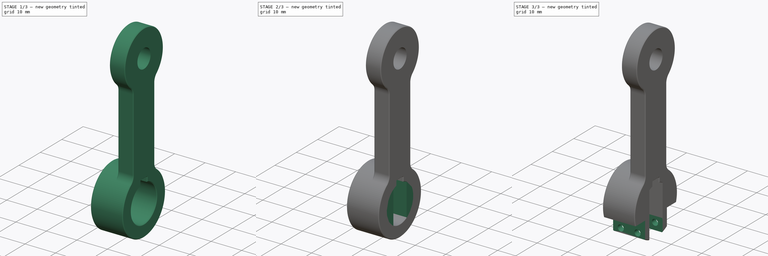
[diagram: build sequence overview — one tinted view per stage of 3, left to right]
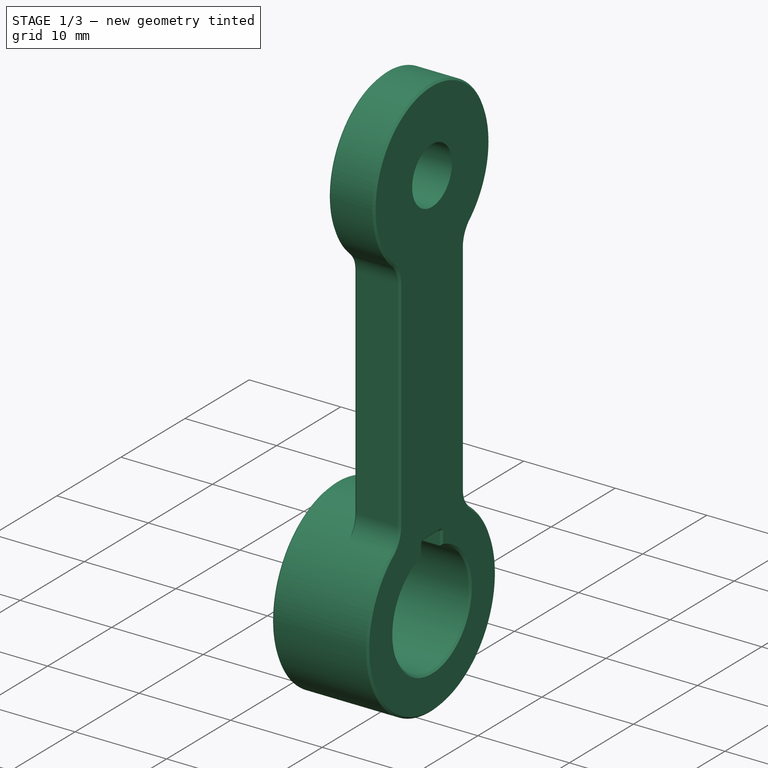
[diagram: stage 1 of 3 — iso view after this stage's code; geometry added in this stage tinted green]
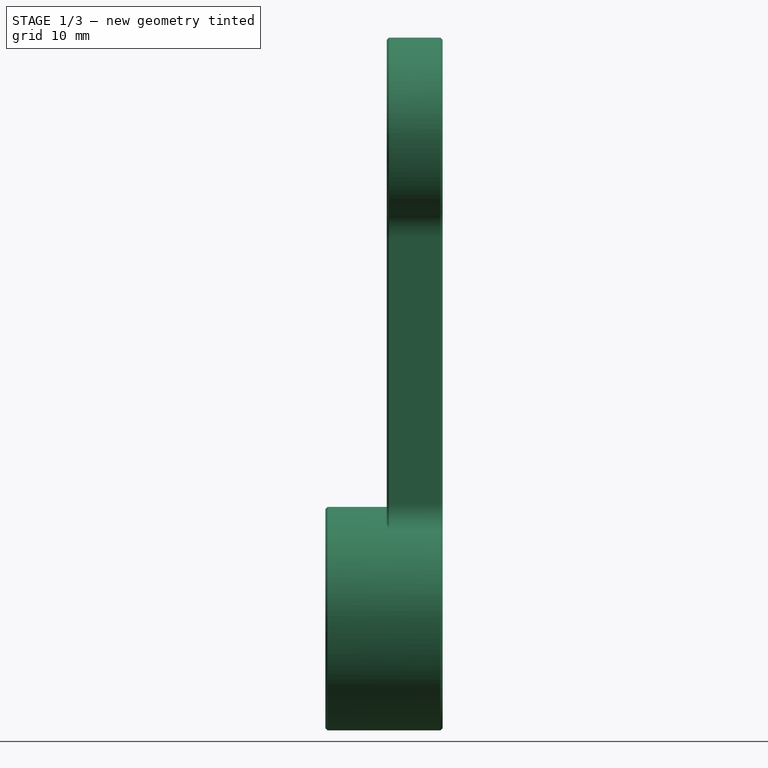
[diagram: stage 1 of 3 — front view after this stage's code; geometry added in this stage tinted green]
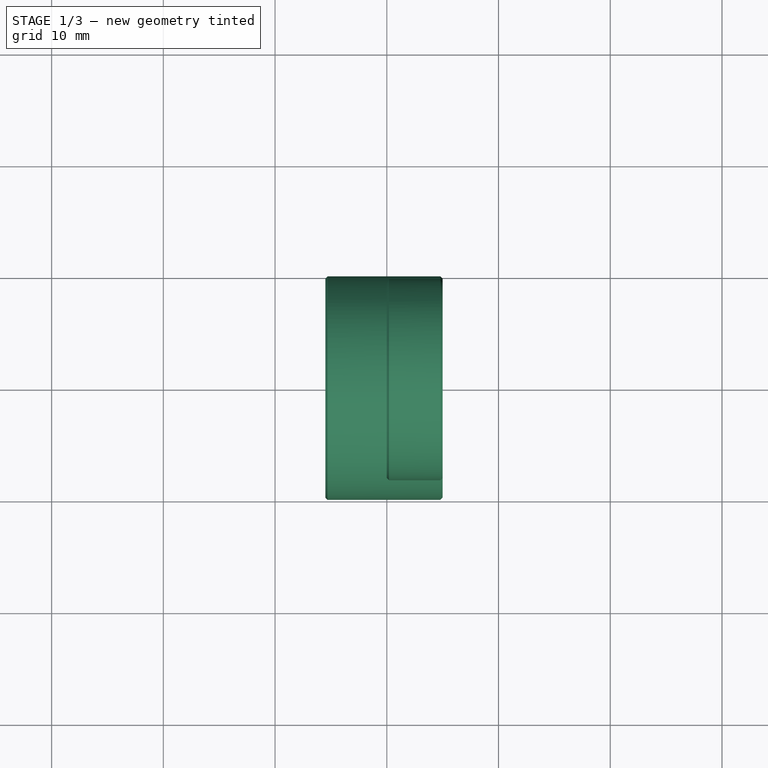
[diagram: stage 1 of 3 — top view after this stage's code; geometry added in this stage tinted green]
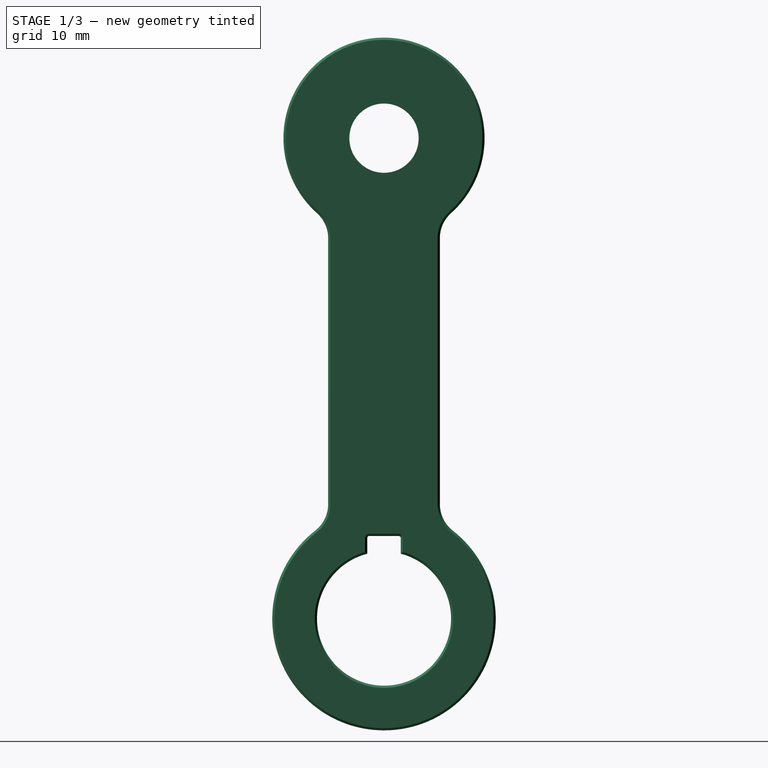
[diagram: stage 1 of 3 — right view after this stage's code; geometry added in this stage tinted green]
FCSTD DOCUMENT  (FreeCAD 0.21R33668 +26 (Git))
Label: link3_0_1
License: All rights reserved
LicenseURL: https://en.wikipedia.org/wiki/All_rights_reserved
objects: Sketcher::SketchObject×5, PartDesign::Pocket×4, Part::Feature×1, PartDesign::FeatureBase×1, PartDesign::Pad×1, PartDesign::Body×1
note: 18 computed .brp shape members not serialized (recipe doc carries the construction recipe); baked Part::Feature solids carry a one-line shape summary decoded from their .brp

FEATURE [Part::Feature] Part__Feature  label="2204159500_22___"
  shape: bbox 10.5 x 20 x 62 mm, 61 faces (baked)
FEATURE [PartDesign::FeatureBase] BaseFeature
  BaseFeature = -> Part__Feature
FEATURE [Sketcher::SketchObject] Sketch
  ExternalGeometry = -> [BaseFeature]
  FullyConstrained = true
  MapMode = 5
  Placement = pos=(0,0,0) rot=(0.57735,-0.57735,-0.57735;2.0944rad)
  Support = -> [BaseFeature]
  sketch-geometry (1):
    g0: Circle CenterX=0 CenterY=43 CenterZ=0 NormalX=0 NormalY=0 NormalZ=1 AngleXU=0 Radius=3.1
  constraints (3):
    c: Radius(g-3) = 2.15
    c: Coincident(g0,g-3)
    c: Diameter(g0) = 6.2
FEATURE [PartDesign::Pocket] Pocket
  BaseFeature = -> BaseFeature
  Direction = (1,0,0)
  Length = 5
  Length2 = 5
  Profile = -> Sketch
  ReferenceAxis = -> Sketch [N_Axis]
  Type = 1
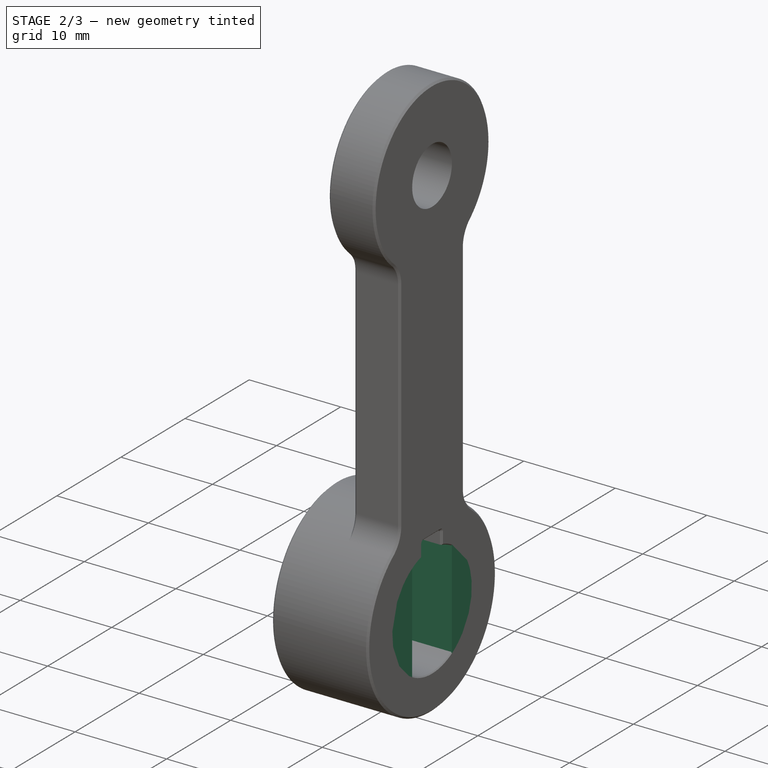
[diagram: stage 2 of 3 — iso view after this stage's code; geometry added in this stage tinted green]
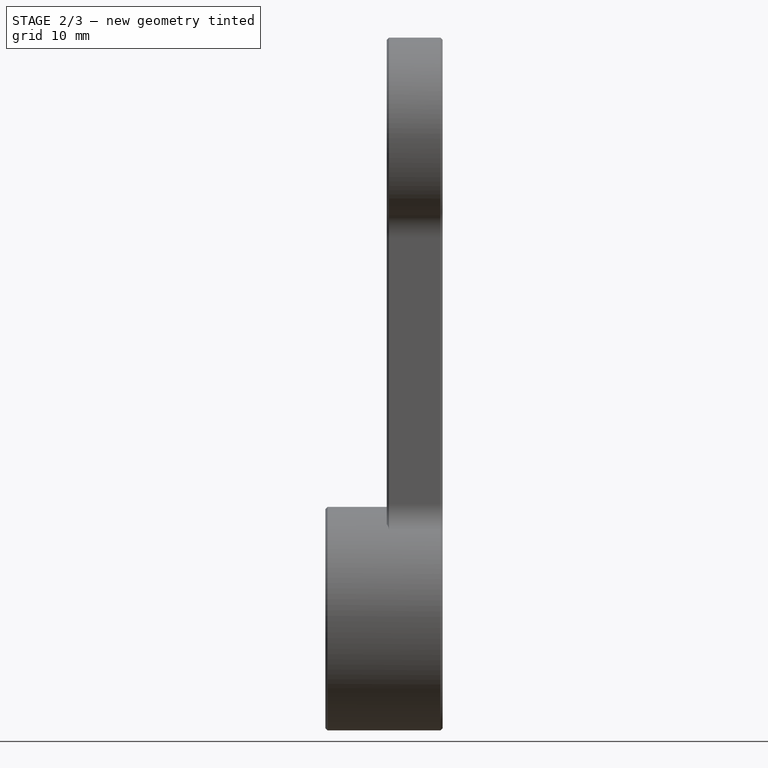
[diagram: stage 2 of 3 — front view after this stage's code; geometry added in this stage tinted green]
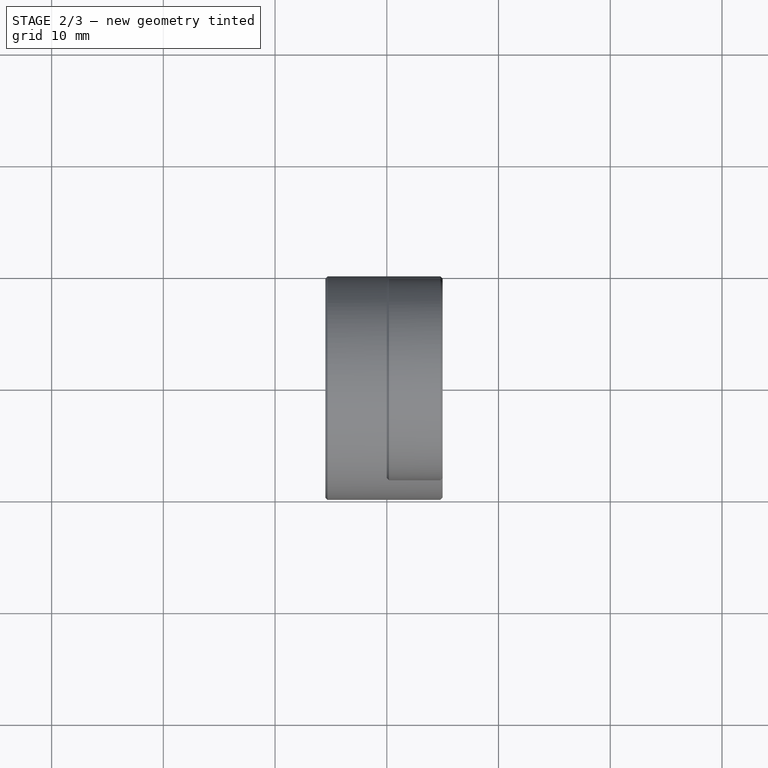
[diagram: stage 2 of 3 — top view after this stage's code; geometry added in this stage tinted green]
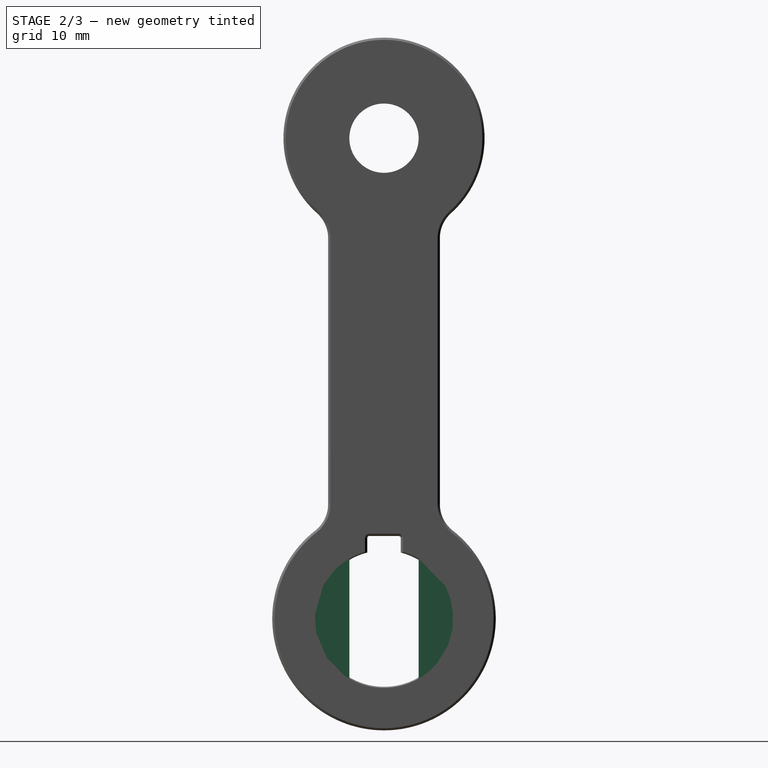
[diagram: stage 2 of 3 — right view after this stage's code; geometry added in this stage tinted green]
FEATURE [Sketcher::SketchObject] Sketch001
  FullyConstrained = true
  MapMode = 5
  Placement = pos=(-5.5,0,0) rot=(0.57735,-0.57735,-0.57735;2.0944rad)
  Support = -> [Pocket]
  sketch-geometry (1):
    g0: Circle CenterX=0 CenterY=0 CenterZ=0 NormalX=0 NormalY=0 NormalZ=1 AngleXU=0 Radius=6.1
  constraints (2):
    c: Coincident(g0,g-1)
    c: Diameter(g0) = 12.2
FEATURE [PartDesign::Pocket] Pocket001
  BaseFeature = -> Pocket
  Direction = (1,0,0)
  Length = 5
  Length2 = 5
  Profile = -> Sketch001
  ReferenceAxis = -> Sketch001 [N_Axis]
  Type = 1
FEATURE [Sketcher::SketchObject] Sketch002
  ExternalGeometry = -> [Pocket001]
  FullyConstrained = true
  MapMode = 5
  Placement = pos=(-5.5,0,0) rot=(0.57735,-0.57735,-0.57735;2.0944rad)
  Support = -> [Pocket001]
  sketch-geometry (8):
    g0: LineSegment StartX=-6.6 StartY=6 StartZ=0 EndX=-3.1 EndY=6 EndZ=0
    g1: LineSegment StartX=-3.1 StartY=6 StartZ=0 EndX=-3.1 EndY=-6 EndZ=0
    g2: LineSegment StartX=-3.1 StartY=-6 StartZ=0 EndX=-6.6 EndY=-6 EndZ=0
    g3: LineSegment StartX=-6.6 StartY=-6 StartZ=0 EndX=-6.6 EndY=6 EndZ=0
    g4: LineSegment StartX=3.1 StartY=6 StartZ=0 EndX=6.6 EndY=6 EndZ=0
    g5: LineSegment StartX=6.6 StartY=6 StartZ=0 EndX=6.6 EndY=-6 EndZ=0
    g6: LineSegment StartX=6.6 StartY=-6 StartZ=0 EndX=3.1 EndY=-6 EndZ=0
    g7: LineSegment StartX=3.1 StartY=-6 StartZ=0 EndX=3.1 EndY=6 EndZ=0
  constraints (24):
    c: Coincident(g0,g1)
    c: Coincident(g1,g2)
    c: Coincident(g2,g3)
    c: Coincident(g3,g0)
    c: Horizontal(g0)
    c: Horizontal(g2)
    c: Vertical(g1)
    c: Vertical(g3)
    c: DistanceY(g1,g1) = 12
    c: DistanceY(g-1,g0) = 6
    c: DistanceX(g0,g-1) = 3.1
    c: DistanceX(g0,g0) = 3.5
    c: Coincident(g4,g5)
    c: Coincident(g5,g6)
    c: Coincident(g6,g7)
    c: Coincident(g7,g4)
    c: Horizontal(g4)
    c: Horizontal(g6)
    c: Vertical(g5)
    c: Vertical(g7)
    c: Horizontal(g1,g6)
    c: Horizontal(g4,g0)
    c: DistanceX(g4,g4) = 3.5
    c: DistanceX(g-1,g4) = 3.1
FEATURE [PartDesign::Pad] Pad
  BaseFeature = -> Pocket001
  Direction = (-1,0,0)
  Length = 10
  Length2 = 10
  Profile = -> Sketch002
  ReferenceAxis = -> Sketch002 [N_Axis]
  Reversed = true
  Type = 3
  UpToFace = -> Pocket001 [Face1]
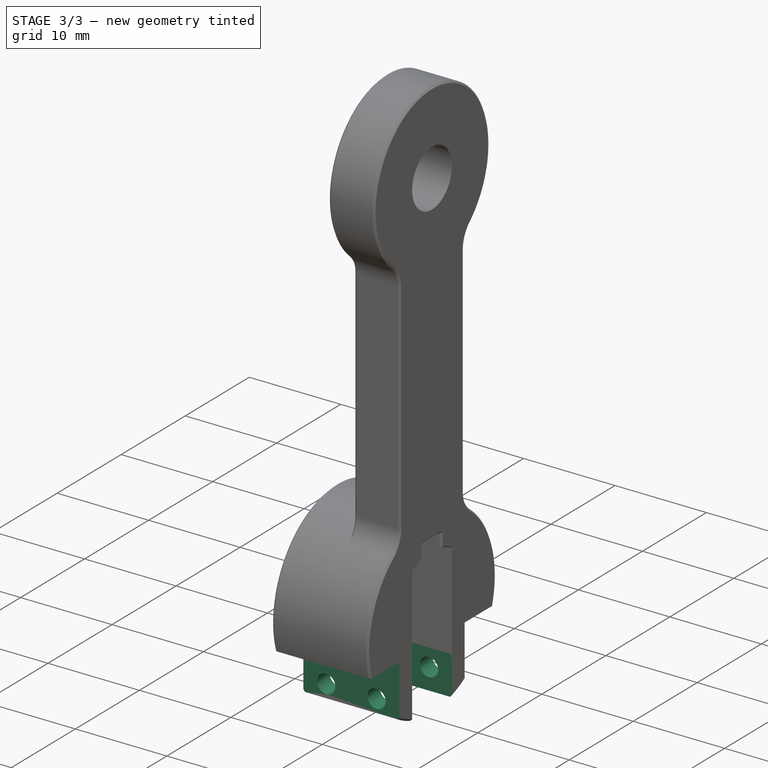
[diagram: stage 3 of 3 — iso view after this stage's code; geometry added in this stage tinted green]
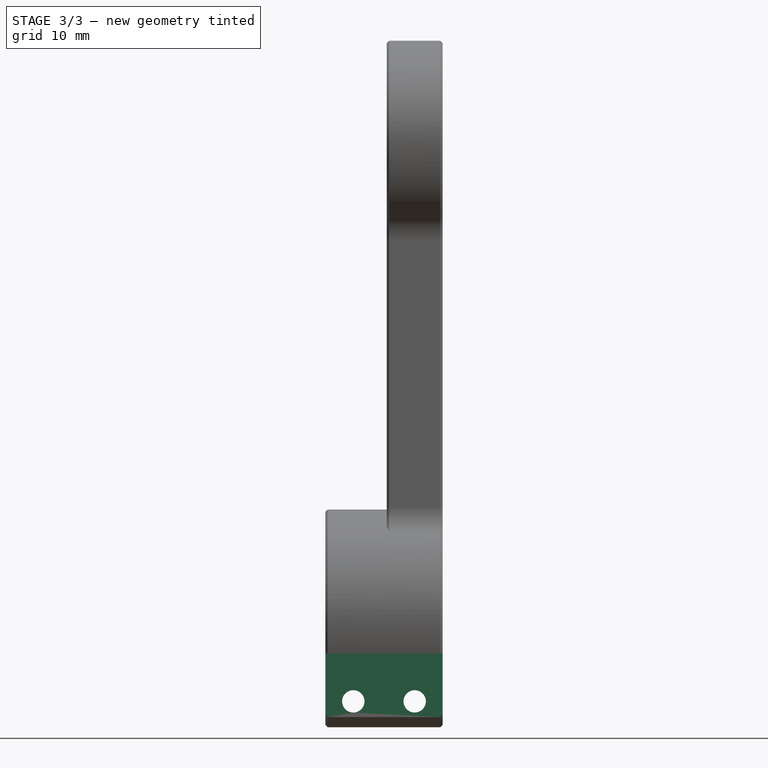
[diagram: stage 3 of 3 — front view after this stage's code; geometry added in this stage tinted green]
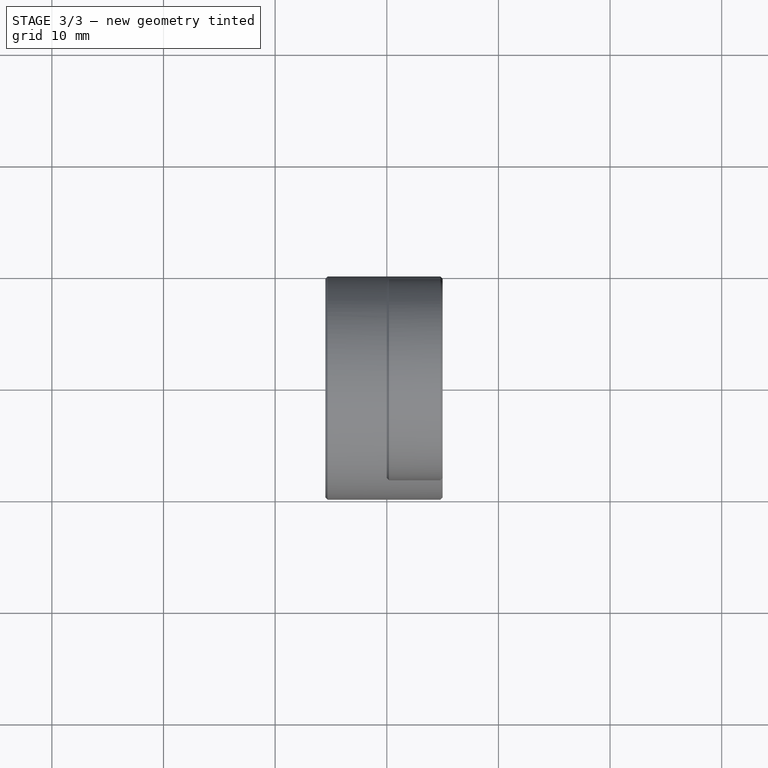
[diagram: stage 3 of 3 — top view after this stage's code; geometry added in this stage tinted green]
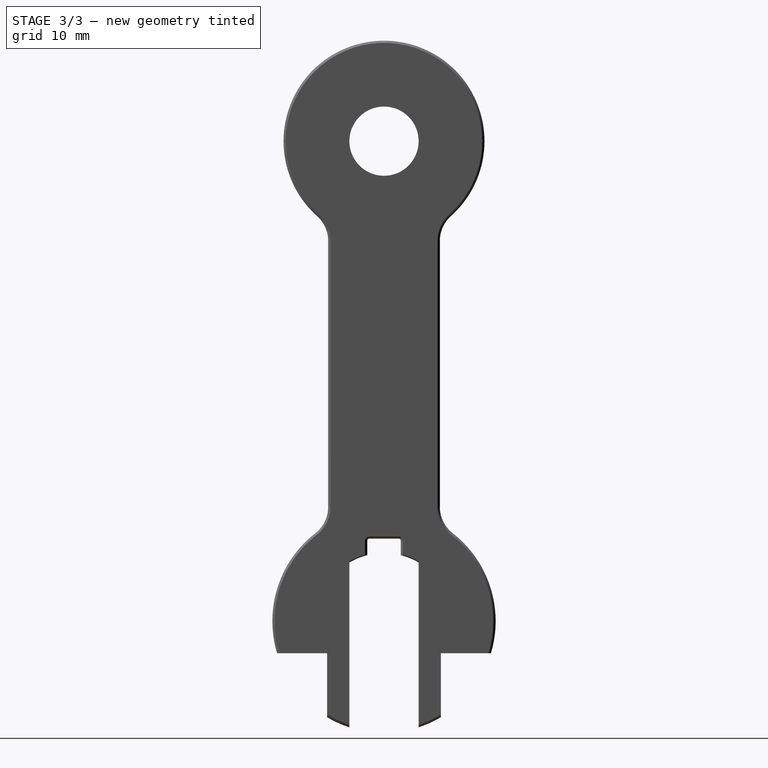
[diagram: stage 3 of 3 — right view after this stage's code; geometry added in this stage tinted green]
FEATURE [Sketcher::SketchObject] Sketch003
  ExternalGeometry = -> [Pad]
  FullyConstrained = false
  MapMode = 5
  Placement = pos=(-5.5,0,0) rot=(0.57735,-0.57735,-0.57735;2.0944rad)
  Support = -> [Pad]
  sketch-geometry (12):
    g0: LineSegment StartX=3.1 StartY=-2.86975 StartZ=0 EndX=-3.1 EndY=-2.86975 EndZ=0
    g1: LineSegment StartX=-3.1 StartY=-2.86975 StartZ=0 EndX=-3.1 EndY=-10.9513 EndZ=0
    g2: LineSegment StartX=-3.1 StartY=-10.9513 StartZ=0 EndX=3.1 EndY=-10.9513 EndZ=0
    g3: LineSegment StartX=3.1 StartY=-10.9513 StartZ=0 EndX=3.1 EndY=-2.86975 EndZ=0
    g4: LineSegment StartX=5.1 StartY=-2.86975 StartZ=0 EndX=11.3238 EndY=-2.86975 EndZ=0
    g5: LineSegment StartX=11.3238 StartY=-2.86975 StartZ=0 EndX=11.3238 EndY=-11.0187 EndZ=0
    g6: LineSegment StartX=11.3238 StartY=-11.0187 StartZ=0 EndX=5.1 EndY=-11.0187 EndZ=0
    g7: LineSegment StartX=5.1 StartY=-11.0187 StartZ=0 EndX=5.1 EndY=-2.86975 EndZ=0
    g8: LineSegment StartX=-11.1322 StartY=-2.86975 StartZ=0 EndX=-5.1 EndY=-2.86975 EndZ=0
    g9: LineSegment StartX=-5.1 StartY=-2.86975 StartZ=0 EndX=-5.1 EndY=-12.761 EndZ=0
    g10: LineSegment StartX=-5.1 StartY=-12.761 StartZ=0 EndX=-11.1322 EndY=-12.761 EndZ=0
    g11: LineSegment StartX=-11.1322 StartY=-12.761 StartZ=0 EndX=-11.1322 EndY=-2.86975 EndZ=0
  constraints (31):
    c: Coincident(g0,g1)
    c: Coincident(g1,g2)
    c: Coincident(g2,g3)
    c: Coincident(g3,g0)
    c: Horizontal(g0)
    c: Horizontal(g2)
    c: Vertical(g1)
    c: Vertical(g3)
    c: PointOnObject(g0,g-4)
    c: Vertical(g1,g-3)
    c: Coincident(g4,g5)
    c: Coincident(g5,g6)
    c: Coincident(g6,g7)
    c: Coincident(g7,g4)
    c: Horizontal(g4)
    c: Horizontal(g6)
    c: Vertical(g5)
    c: Vertical(g7)
    c: Coincident(g8,g9)
    c: Coincident(g9,g10)
    c: Coincident(g10,g11)
    c: Coincident(g11,g8)
    c: Horizontal(g8)
    c: Horizontal(g10)
    c: Vertical(g9)
    c: Vertical(g11)
    c: Horizontal(g8,g0)
    c: Horizontal(g4,g0)
    c: DistanceY(g-4,g0) = 2.5
    c: DistanceX(g0,g4) = 2
    c: DistanceX(g8,g0) = 2
FEATURE [PartDesign::Pocket] Pocket002
  BaseFeature = -> Pad
  Direction = (1,0,0)
  Length = 0
  Length2 = 5
  Profile = -> Sketch003
  ReferenceAxis = -> Sketch003 [N_Axis]
  Type = 3
  UpToFace = -> Pad [Face1]
FEATURE [Sketcher::SketchObject] Sketch004
  ExternalGeometry = -> [Pocket002]
  FullyConstrained = true
  MapMode = 5
  Placement = pos=(0,-5.1,0) rot=(1,0,0;1.5708rad)
  Support = -> [Pocket002]
  sketch-geometry (2):
    g0: Circle CenterX=-3 CenterY=-7.1842 CenterZ=0 NormalX=0 NormalY=0 NormalZ=1 AngleXU=0 Radius=1
    g1: Circle CenterX=2.5 CenterY=-7.1842 CenterZ=0 NormalX=0 NormalY=0 NormalZ=1 AngleXU=0 Radius=1
  constraints (8):
    c: Horizontal(g0,g1)
    c: Diameter(g1) = 2
    c: Equal(g0,g1)
    c: DistanceX(g-3,g-4) = 10.5
    c: DistanceX(g-3,g0) = 2.5
    c: DistanceX(g1,g-4) = 2.5
    c: DistanceY(g-4,g-4) = 2.36839
    c: DistanceY(g-4,g1) = 1.1842
FEATURE [PartDesign::Pocket] Pocket003
  BaseFeature = -> Pocket002
  Direction = (0,1,-2e-16)
  Length = 5
  Length2 = 5
  Profile = -> Sketch004
  ReferenceAxis = -> Sketch004 [N_Axis]
  Type = 1
FEATURE [PartDesign::Body] Body
  BaseFeature = -> Part__Feature
  Group = -> [BaseFeature,Sketch,Pocket,Sketch001,Pocket001,Sketch002,Pad,Sketch003,Pocket002,Sketch004,Pocket003]
  Origin = -> Origin
  Tip = -> Pocket003
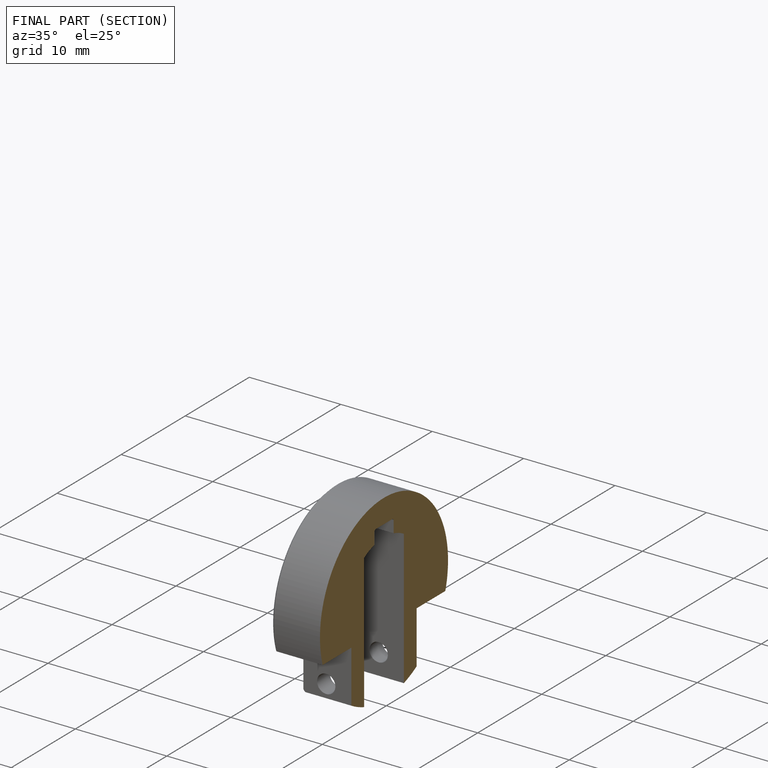
[diagram: finished part — half-section view (interior)]
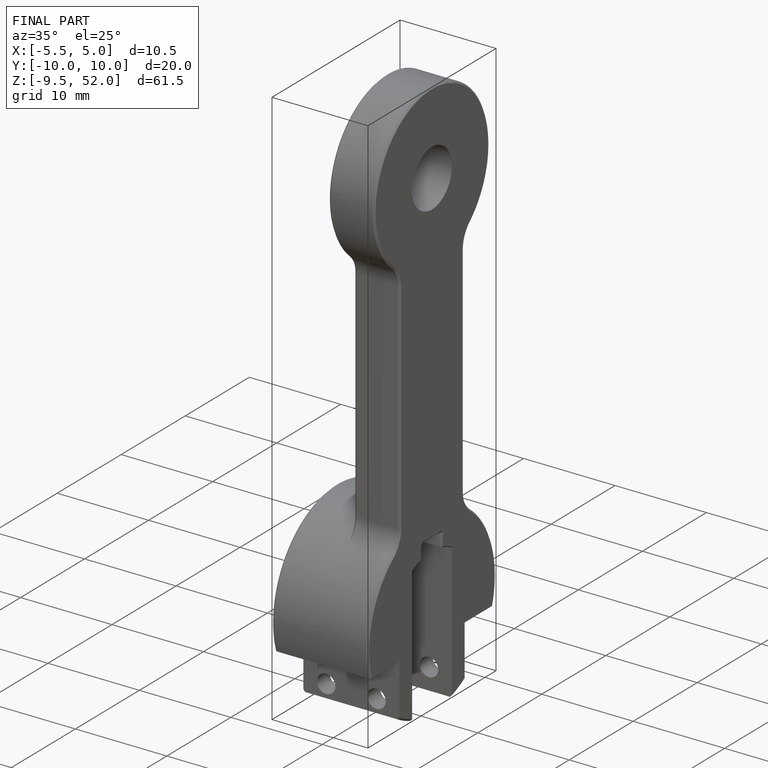
[diagram: finished part — iso view with bounding-box wireframe]
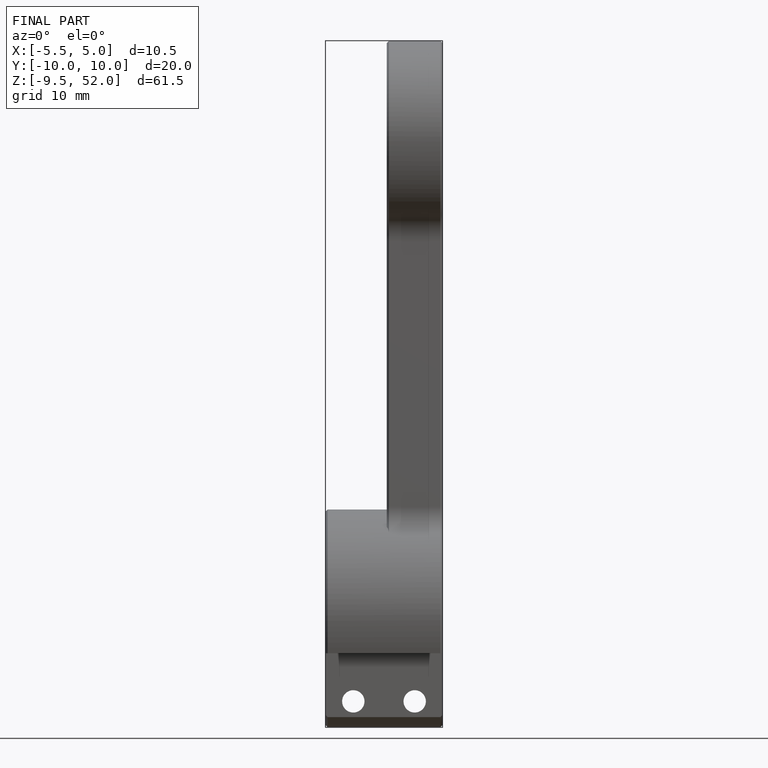
[diagram: finished part — front view with bounding-box wireframe]
